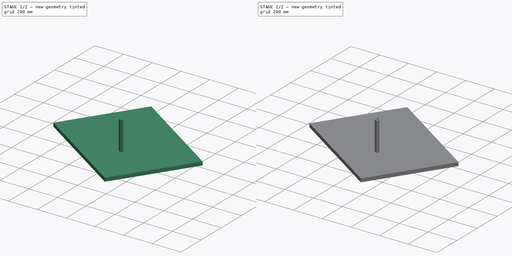
[diagram: build sequence overview — one tinted view per stage of 2, left to right]
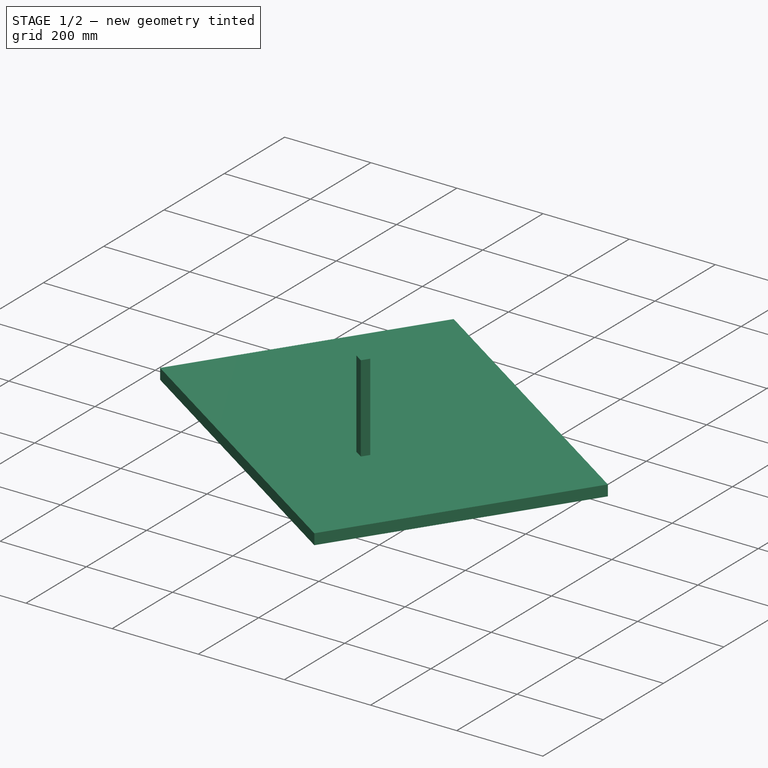
[diagram: stage 1 of 2 — iso view after this stage's code; geometry added in this stage tinted green]
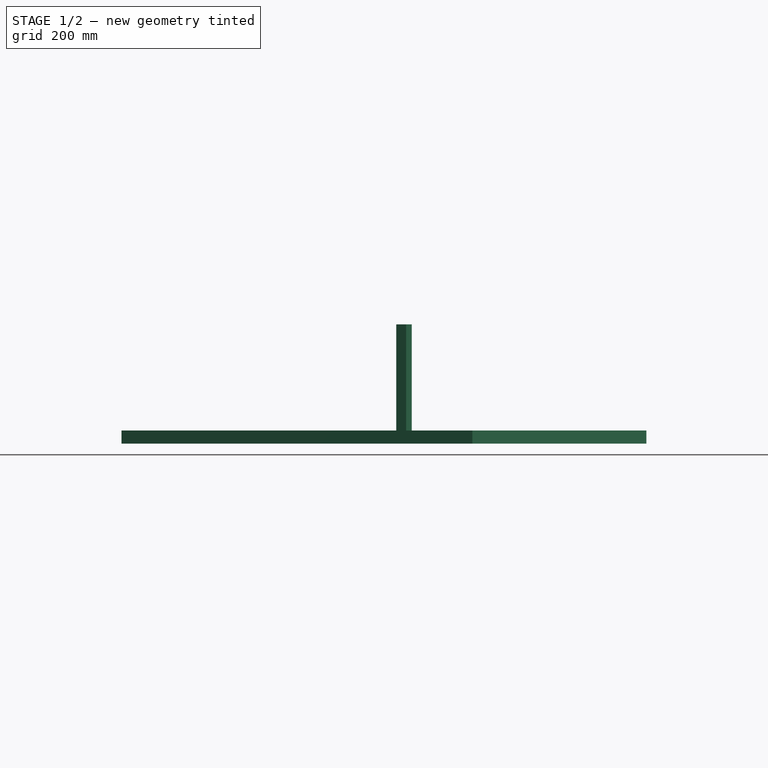
[diagram: stage 1 of 2 — front view after this stage's code; geometry added in this stage tinted green]
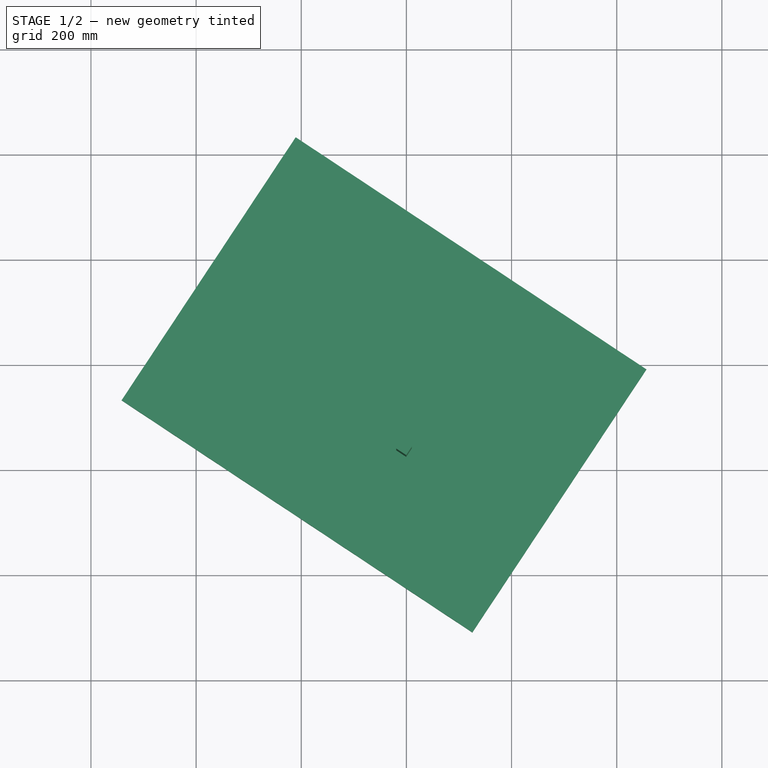
[diagram: stage 1 of 2 — top view after this stage's code; geometry added in this stage tinted green]
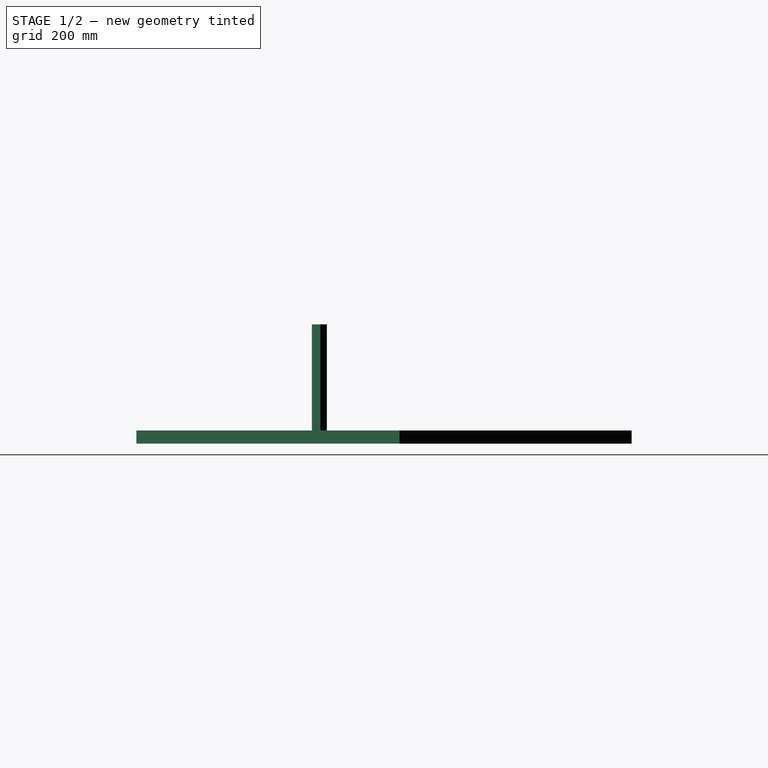
[diagram: stage 1 of 2 — right view after this stage's code; geometry added in this stage tinted green]
FCSTD DOCUMENT  (FreeCAD 0.20R29177 +426 (Git))
Label: MDP로봇팔 (2)
License: All rights reserved
LicenseURL: http://en.wikipedia.org/wiki/All_rights_reserved
objects: PartDesign::ShapeBinder×5, Sketcher::SketchObject×2, PartDesign::Pad×2, Part::Feature×1, Part::Sphere×1, PartDesign::Body×1
note: 14 computed .brp shape members not serialized (recipe doc carries the construction recipe); baked Part::Feature solids carry a one-line shape summary decoded from their .brp

FEATURE [PartDesign::Pad] Pad
  Direction = (0,0,-1)
  Length = 25
  Length2 = 10
  Placement = pos=(40.7793,-92.8796,36.1076) rot=(0.208154,0.691618,0.691618;2.73115rad)
  Profile = -> Sketch004
  ReferenceAxis = -> Sketch004 [N_Axis]
  Type = 0
FEATURE [PartDesign::Pad] Pad001
  BaseFeature = -> Pad
  Direction = (-2e-16,-3e-16,1)
  Length = 202
  Length2 = 10
  Placement = pos=(40.7793,-92.8796,36.1076) rot=(0.208154,0.691618,0.691618;2.73115rad)
  Profile = -> Sketch005
  ReferenceAxis = -> Sketch005 [N_Axis]
  Type = 0
FEATURE [PartDesign::Body] Body
  Group = -> [CopyFeature,CopyFeature001,CopyFeature002,CopyFeature003,ReferenceFeature,Sketch004,Sketch005,Pad,Pad001]
  Origin = -> Origin
  Tip = -> Pad001
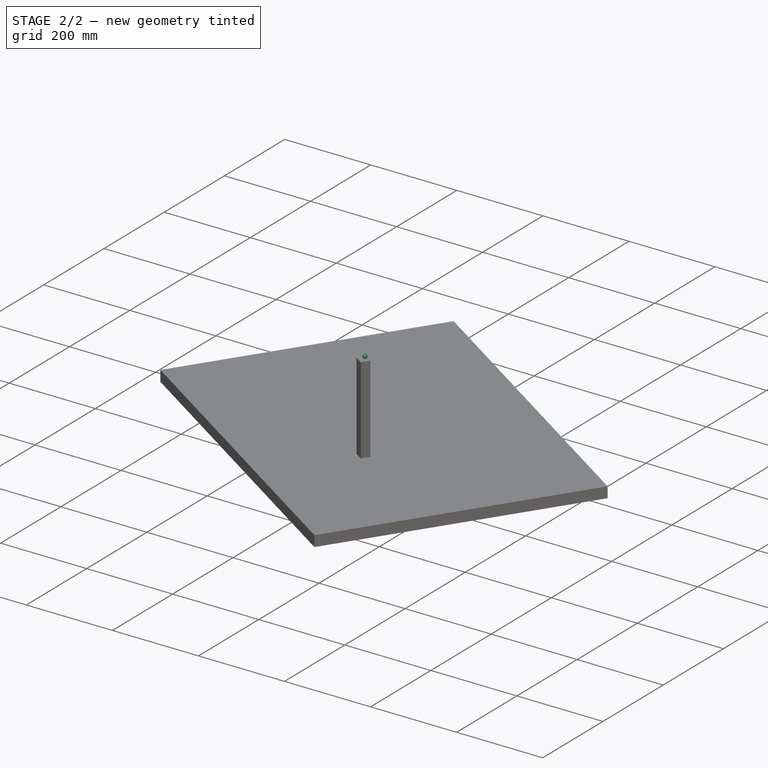
[diagram: stage 2 of 2 — iso view after this stage's code; geometry added in this stage tinted green]
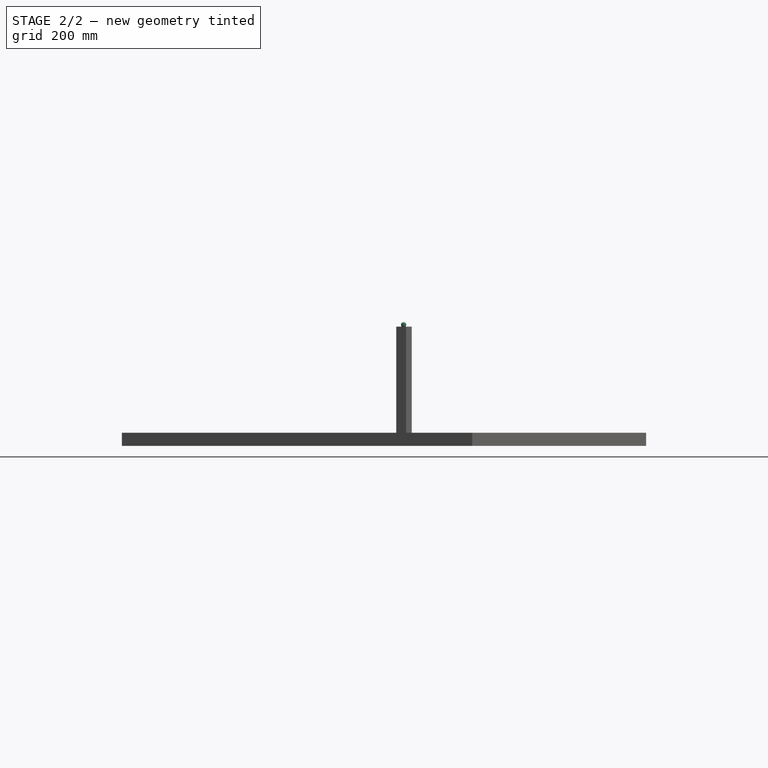
[diagram: stage 2 of 2 — front view after this stage's code; geometry added in this stage tinted green]
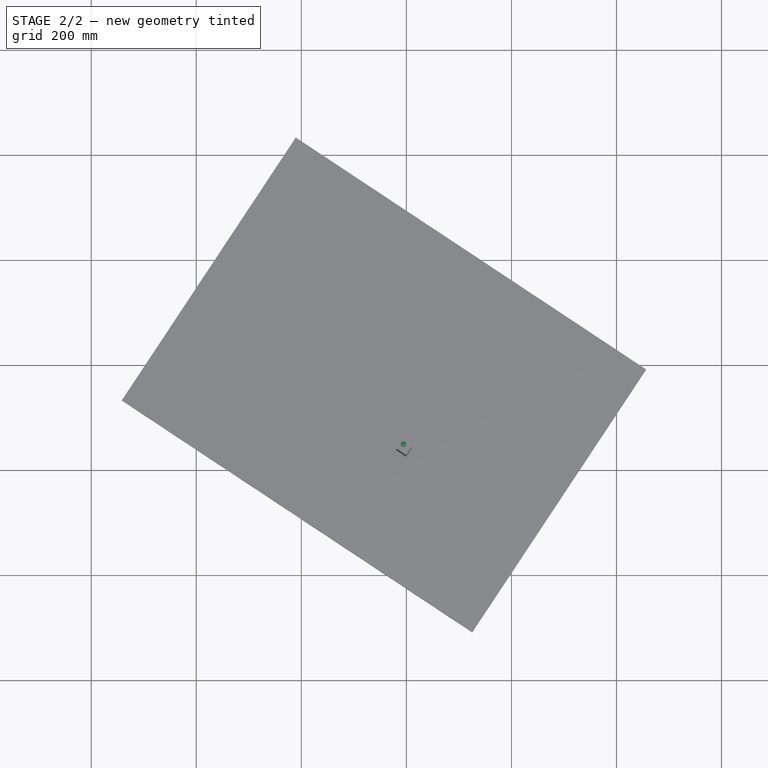
[diagram: stage 2 of 2 — top view after this stage's code; geometry added in this stage tinted green]
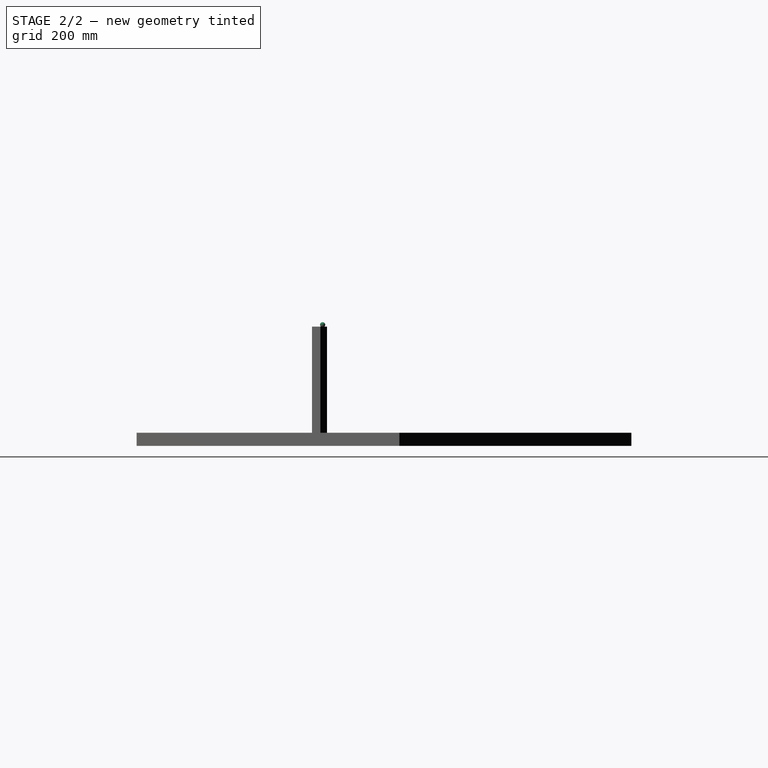
[diagram: stage 2 of 2 — right view after this stage's code; geometry added in this stage tinted green]
FEATURE [Part::Feature] Feature  label="Robotic Arm 3D Model001"
  shape: bbox 259.3 x 140.7 x 239.8 mm, 1214 faces, 45 solids (baked)
FEATURE [PartDesign::ShapeBinder] CopyFeature
  Placement = pos=(40.7793,-92.8796,36.1076) rot=(0.208154,0.691618,0.691618;2.73115rad)
  TraceSupport = false
FEATURE [PartDesign::ShapeBinder] CopyFeature001
  Placement = pos=(40.7793,-92.8796,36.1076) rot=(0.208154,0.691618,0.691618;2.73115rad)
  TraceSupport = false
FEATURE [PartDesign::ShapeBinder] CopyFeature002
  Placement = pos=(40.7793,-92.8796,36.1076) rot=(0.208154,0.691618,0.691618;2.73115rad)
  TraceSupport = false
FEATURE [PartDesign::ShapeBinder] CopyFeature003
  Placement = pos=(40.7793,-92.8796,36.1076) rot=(0.208154,0.691618,0.691618;2.73115rad)
  TraceSupport = false
FEATURE [PartDesign::ShapeBinder] ReferenceFeature
  Placement = pos=(40.7793,-92.8796,36.1076) rot=(0.208154,0.691618,0.691618;2.73115rad)
  Support = -> [Feature]
  TraceSupport = false
FEATURE [Sketcher::SketchObject] Sketch004
  FullyConstrained = true
  MapMode = 5
  Placement = pos=(40.7793,-92.8796,36.1076) rot=(0.288196,0.957571,0;3.14159rad)
  Support = -> [ReferenceFeature]
  sketch-geometry (4):
    g0: LineSegment StartX=-300 StartY=300 StartZ=0 EndX=500 EndY=300 EndZ=0
    g1: LineSegment StartX=500 StartY=300 StartZ=0 EndX=500 EndY=-300 EndZ=0
    g2: LineSegment StartX=500 StartY=-300 StartZ=0 EndX=-300 EndY=-300 EndZ=0
    g3: LineSegment StartX=-300 StartY=-300 StartZ=0 EndX=-300 EndY=300 EndZ=0
  constraints (12):
    c: Coincident(g0,g1)
    c: Coincident(g1,g2)
    c: Coincident(g2,g3)
    c: Coincident(g3,g0)
    c: Horizontal(g0)
    c: Horizontal(g2)
    c: Vertical(g1)
    c: Vertical(g3)
    c: DistanceY(g3,g3) = 600
    c: DistanceX(g0,g0) = 800
    c: DistanceX(g2,g-1) = 300
    c: DistanceY(g-1,g0) = 300
FEATURE [Sketcher::SketchObject] Sketch005
  FullyConstrained = false
  MapMode = 5
  Placement = pos=(40.7793,-92.8796,36.1076) rot=(0,0,-1;0.584685rad)
  sketch-geometry (4):
    g0: LineSegment StartX=-11.7673 StartY=-71.8397 StartZ=0 EndX=-11.7673 EndY=-91.101 EndZ=0
    g1: LineSegment StartX=-11.7673 StartY=-91.101 StartZ=0 EndX=10.8947 EndY=-91.101 EndZ=0
    g2: LineSegment StartX=10.8947 StartY=-91.101 StartZ=0 EndX=10.8947 EndY=-71.8397 EndZ=0
    g3: LineSegment StartX=10.8947 StartY=-71.8397 StartZ=0 EndX=-11.7673 EndY=-71.8397 EndZ=0
  constraints (8):
    c: Vertical(g0)
    c: Coincident(g0,g1)
    c: Horizontal(g1)
    c: Coincident(g1,g2)
    c: Vertical(g2)
    c: Coincident(g2,g3)
    c: Coincident(g3,g0)
    c: Perpendicular(g0,g3)
FEATURE [Part::Sphere] Sphere  label="공모양"
  Angle1 = -90
  Angle2 = 90
  Angle3 = 360
  AttacherType = Attacher::AttachEngine3D
  Placement = pos=(-5.3129,-154.532,241.574) rot=(-0.775698,-0.483764,0.405296;1.72778rad)
  Radius = 5
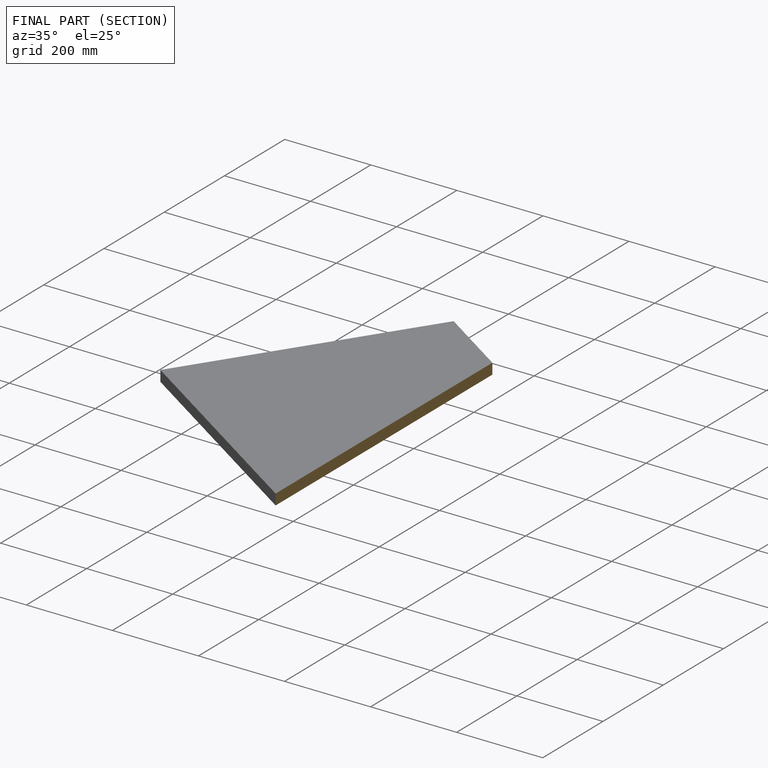
[diagram: finished part — half-section view (interior)]
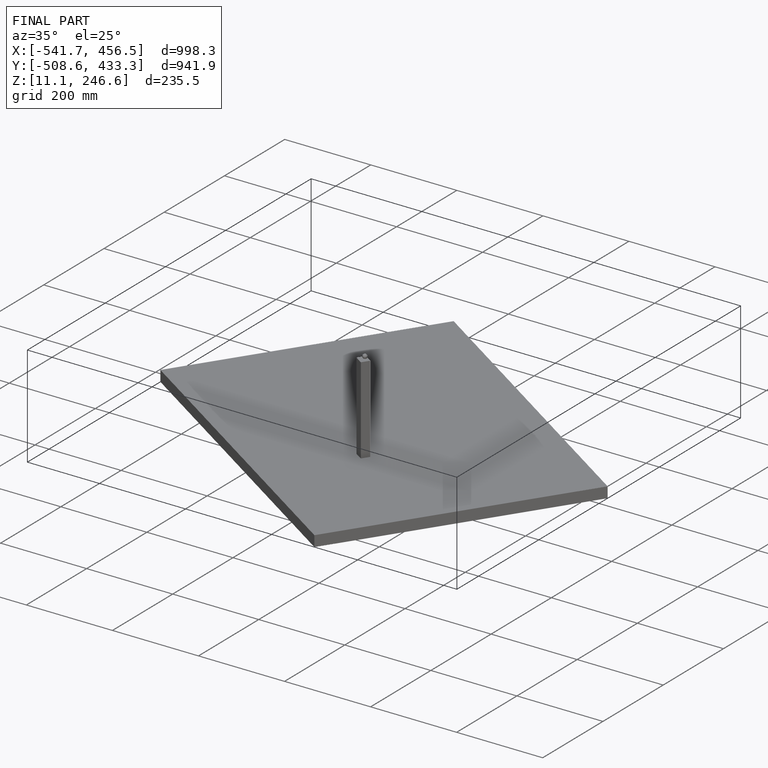
[diagram: finished part — iso view with bounding-box wireframe]
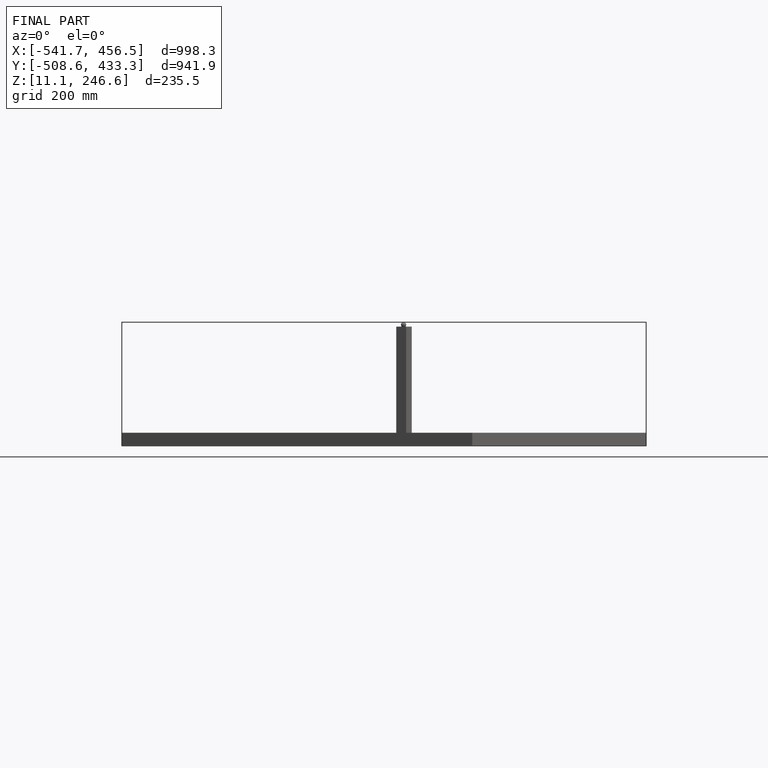
[diagram: finished part — front view with bounding-box wireframe]
